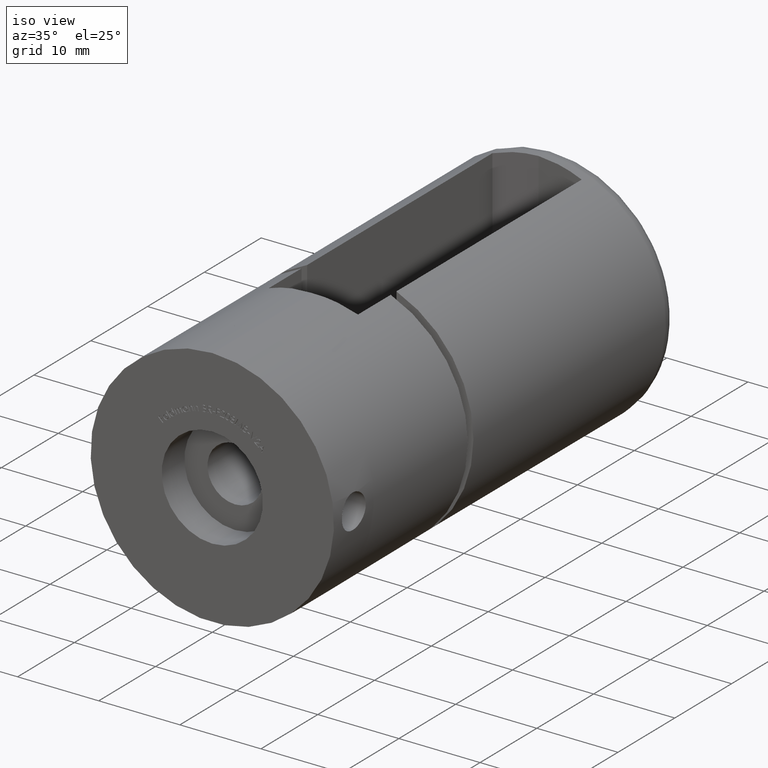
[diagram: clean part render]
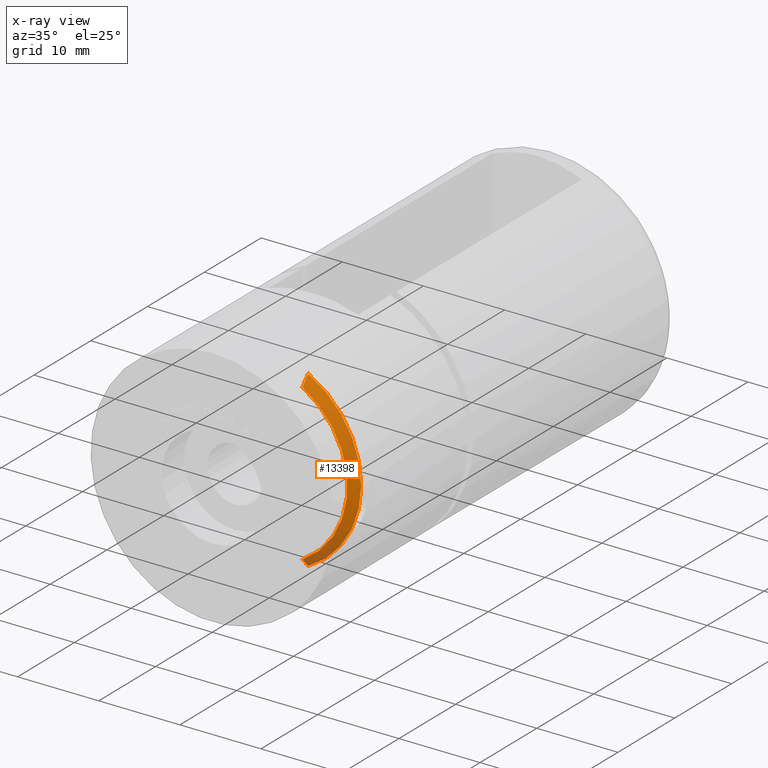
[diagram: x-ray — body ghosted, one internal face saturated and labeled with its STEP entity id]
A machine part, iso view, then the same camera in x-ray: the body is ghosted and one INTERNAL B-rep face — a face not visible from any outside direction — is saturated and labeled: STEP entity #13398.
In plain terms, the highlighted conical surface has half-angle 45 deg.
Its self-contained STEP definition (entity closure, byte-faithful):
#316 = CARTESIAN_POINT ( 'NONE',  ( 5.500000000000000900, 52.94999999999998200, 10.72159036710506000 ) ) ;
#598 = CIRCLE ( 'NONE', #869, 12.05000000000000100 ) ;
#869 = AXIS2_PLACEMENT_3D ( 'NONE', #7020, #16365, #5498 ) ;
#1114 = AXIS2_PLACEMENT_3D ( 'NONE', #11793, #17120, #7840 ) ;
#1523 = CARTESIAN_POINT ( 'NONE',  ( 5.500000000000000900, 53.94999999999999600, 9.583970993278297700 ) ) ;
#1767 = CARTESIAN_POINT ( 'NONE',  ( 5.500000000000000900, 53.94999999999999600, 9.583970993278297700 ) ) ;
#3557 = VERTEX_POINT ( 'NONE', #12785 ) ;
#4353 = DIRECTION ( 'NONE',  ( 0.0000000000000000000, -1.000000000000000000, 0.0000000000000000000 ) ) ;
#4953 = VERTEX_POINT ( 'NONE', #15378 ) ;
#5498 = DIRECTION ( 'NONE',  ( 0.0000000000000000000, 0.0000000000000000000, 1.000000000000000000 ) ) ;
#6155 = ORIENTED_EDGE ( 'NONE', *, *, #16879, .F. ) ;
#6628 = VERTEX_POINT ( 'NONE', #1523 ) ;
#6912 = CARTESIAN_POINT ( 'NONE',  ( 0.0000000000000000000, 53.94999999999999600, 0.0000000000000000000 ) ) ;
#6955 = CIRCLE ( 'NONE', #1114, 11.04999999999999200 ) ;
#7020 = CARTESIAN_POINT ( 'NONE',  ( 0.0000000000000000000, 52.94999999999998200, 0.0000000000000000000 ) ) ;
#7572 = ORIENTED_EDGE ( 'NONE', *, *, #13384, .F. ) ;
#7840 = DIRECTION ( 'NONE',  ( 0.0000000000000000000, 0.0000000000000000000, 1.000000000000000000 ) ) ;
#8256 = AXIS2_PLACEMENT_3D ( 'NONE', #6912, #4353, #9628 ) ;
#9628 = DIRECTION ( 'NONE',  ( 0.0000000000000000000, 0.0000000000000000000, -1.000000000000000000 ) ) ;
#9762 = CARTESIAN_POINT ( 'NONE',  ( 5.500000000000000900, 53.61918428849094200, 9.965390512884408000 ) ) ;
#11250 = FACE_OUTER_BOUND ( 'NONE', #16853, .T. ) ;
#11793 = CARTESIAN_POINT ( 'NONE',  ( 0.0000000000000000000, 53.94999999999999600, 0.0000000000000000000 ) ) ;
#11869 = CONICAL_SURFACE ( 'NONE', #8256, 11.04999999999999000, 0.7853981633974456100 ) ;
#12590 = VERTEX_POINT ( 'NONE', #14531 ) ;
#12733 = ORIENTED_EDGE ( 'NONE', *, *, #17088, .F. ) ;
#12785 = CARTESIAN_POINT ( 'NONE',  ( 5.499999999999999100, 52.94999999999998200, -10.72159036710506000 ) ) ;
#12870 = ORIENTED_EDGE ( 'NONE', *, *, #16224, .F. ) ;
#13134 = CARTESIAN_POINT ( 'NONE',  ( 5.499999999999999100, 53.61918428849094200, -9.965390512884408000 ) ) ;
#13384 = EDGE_CURVE ( 'NONE', #3557, #4953, #598, .T. ) ;
#13398 = ADVANCED_FACE ( 'NONE', ( #11250 ), #11869, .T. ) ;
#13970 = B_SPLINE_CURVE_WITH_KNOTS ( 'NONE', 3,
 ( #17168, #13134, #14430, #15819 ),
 .UNSPECIFIED., .F., .F.,
 ( 4, 4 ),
 ( 1.734723475976807100E-018, 0.001514654363115894800 ),
 .UNSPECIFIED. ) ;
#14430 = CARTESIAN_POINT ( 'NONE',  ( 5.499999999999999100, 53.28561648060672000, -10.34439086098336200 ) ) ;
#14531 = CARTESIAN_POINT ( 'NONE',  ( 5.499999999999999100, 53.94999999999999600, -9.583970993278295900 ) ) ;
#15106 = CARTESIAN_POINT ( 'NONE',  ( 5.500000000000000900, 53.28561648060672000, 10.34439086098336200 ) ) ;
#15378 = CARTESIAN_POINT ( 'NONE',  ( 5.500000000000000900, 52.94999999999998200, 10.72159036710506000 ) ) ;
#15819 = CARTESIAN_POINT ( 'NONE',  ( 5.499999999999999100, 52.94999999999998200, -10.72159036710506000 ) ) ;
#16082 = B_SPLINE_CURVE_WITH_KNOTS ( 'NONE', 3,
 ( #316, #15106, #9762, #1767 ),
 .UNSPECIFIED., .F., .F.,
 ( 4, 4 ),
 ( 0.0000000000000000000, 0.001514654363115897400 ),
 .UNSPECIFIED. ) ;
#16224 = EDGE_CURVE ( 'NONE', #12590, #3557, #13970, .T. ) ;
#16365 = DIRECTION ( 'NONE',  ( 0.0000000000000000000, -1.000000000000000000, 0.0000000000000000000 ) ) ;
#16853 = EDGE_LOOP ( 'NONE', ( #6155, #7572, #12870, #12733 ) ) ;
#16879 = EDGE_CURVE ( 'NONE', #4953, #6628, #16082, .T. ) ;
#17088 = EDGE_CURVE ( 'NONE', #6628, #12590, #6955, .T. ) ;
#17120 = DIRECTION ( 'NONE',  ( 0.0000000000000000000, 1.000000000000000000, 0.0000000000000000000 ) ) ;
#17168 = CARTESIAN_POINT ( 'NONE',  ( 5.499999999999999100, 53.94999999999999600, -9.583970993278295900 ) ) ;